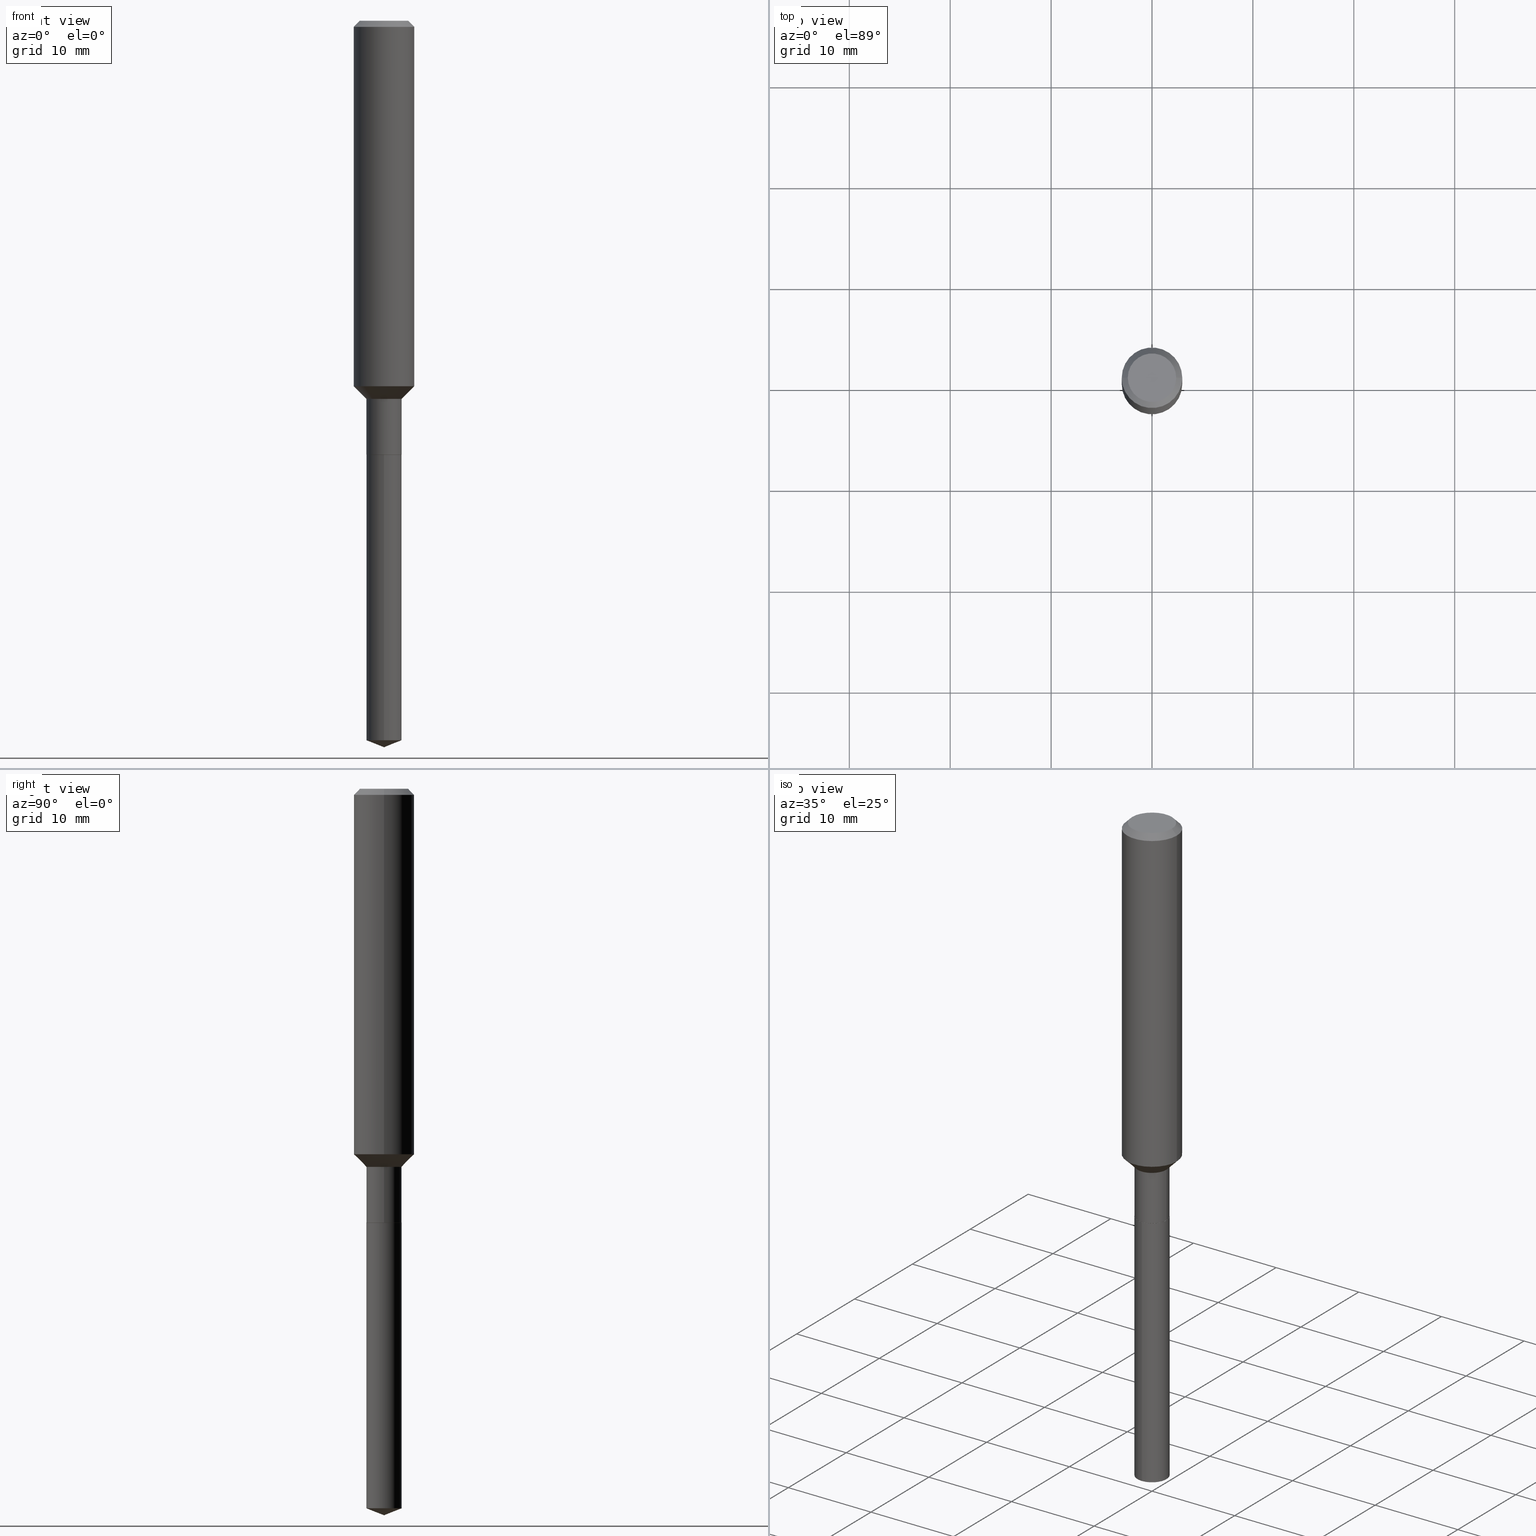
[diagram: canonical four-view strip — front | top / right | iso, engineering-drawing reading convention]
A machine part, canonical four-view strip (front | top / right | iso — engineering-drawing reading convention). The complete STEP part file that produces these views, byte-faithful:
ISO-10303-21;
HEADER;
FILE_DESCRIPTION (( 'STEP AP203' ),
    '1' );
FILE_NAME ('66611.STEP',
    '2024-04-25T01:59:13',
    ( '' ),
    ( '' ),
    'SwSTEP 2.0',
    'SolidWorks 2023',
    '' );
FILE_SCHEMA (( 'CONFIG_CONTROL_DESIGN' ));
ENDSEC;

DATA;
#1 = EDGE_CURVE ( 'NONE', #399, #486, #226, .T. ) ;
#2 = CIRCLE ( 'NONE', #484, 0.1180999999999999966 ) ;
#3 = DIRECTION ( 'NONE',  ( -2.445468806185136597E-29, 3.491481338843145583E-15, 1.000000000000000000 ) ) ;
#4 =( CONVERSION_BASED_UNIT ( 'INCH', #457 ) LENGTH_UNIT ( ) NAMED_UNIT ( #292 ) );
#5 = DIRECTION ( 'NONE',  ( -2.445468806185136597E-29, 3.491481338843145583E-15, 1.000000000000000000 ) ) ;
#6 = ADVANCED_FACE ( 'NONE', ( #42 ), #288, .T. ) ;
#7 = FACE_OUTER_BOUND ( 'NONE', #283, .T. ) ;
#8 = CIRCLE ( 'NONE', #291, 0.09447999999999998066 ) ;
#9 = CONICAL_SURFACE ( 'NONE', #458, 0.06840000000000000246, 0.7853981633975591903 ) ;
#10 = CALENDAR_DATE ( 2024, 24, 4 ) ;
#11 = CARTESIAN_POINT ( 'NONE',  ( 3.487483064500622693E-29, -4.979201537324209694E-15, -1.426099999999999923 ) ) ;
#12 = PERSON_AND_ORGANIZATION ( #142, #322 ) ;
#13 = CARTESIAN_POINT ( 'NONE',  ( 0.000000000000000000, 0.000000000000000000, 0.000000000000000000 ) ) ;
#14 = APPROVAL_STATUS ( 'not_yet_approved' ) ;
#15 = DIRECTION ( 'NONE',  ( 1.000000000000000000, -6.982962677686265922E-15, 4.876176775795935793E-29 ) ) ;
#16 = VECTOR ( 'NONE', #270, 39.37007874015748143 ) ;
#17 = LINE ( 'NONE', #423, #225 ) ;
#18 = CARTESIAN_POINT ( 'NONE',  ( 4.139934141990817236E-29, -5.910728758527560286E-15, -1.692899999999999849 ) ) ;
#19 = EDGE_LOOP ( 'NONE', ( #294, #215, #365, #74 ) ) ;
#20 = EDGE_CURVE ( 'NONE', #486, #430, #90, .T. ) ;
#21 = CC_DESIGN_PERSON_AND_ORGANIZATION_ASSIGNMENT ( #86, #230, ( #128 ) ) ;
#22 = DIRECTION ( 'NONE',  ( -2.440414050576406318E-29, 3.498720036573669606E-15, 1.000000000000000000 ) ) ;
#23 = ORIENTED_EDGE ( 'NONE', *, *, #422, .F. ) ;
#24 = VECTOR ( 'NONE', #487, 39.37007874015748143 ) ;
#25 = AXIS2_PLACEMENT_3D ( 'NONE', #481, #485, #134 ) ;
#26 = CARTESIAN_POINT ( 'NONE',  ( 0.000000000000000000, 0.000000000000000000, 0.000000000000000000 ) ) ;
#27 = ORIENTED_EDGE ( 'NONE', *, *, #152, .F. ) ;
#28 = CYLINDRICAL_SURFACE ( 'NONE', #315, 0.06890000000000000291 ) ;
#29 = VERTEX_POINT ( 'NONE', #490 ) ;
#30 = APPROVAL ( #308, 'UNSPECIFIED' ) ;
#31 = DIRECTION ( 'NONE',  ( -2.445468806185136597E-29, 3.491481338843145583E-15, 1.000000000000000000 ) ) ;
#32 = ORIENTED_EDGE ( 'NONE', *, *, #269, .F. ) ;
#33 = CONICAL_SURFACE ( 'NONE', #355, 99.94676754583977640, 1.195550537616118847 ) ;
#34 = APPLICATION_PROTOCOL_DEFINITION ( 'international standard', 'config_control_design', 1994, #397 ) ;
#35 = EDGE_LOOP ( 'NONE', ( #133, #286, #433, #483 ) ) ;
#36 = DIRECTION ( 'NONE',  ( 1.000000000000000000, -6.982962677686268288E-15, 0.000000000000000000 ) ) ;
#37 = EDGE_CURVE ( 'NONE', #478, #163, #320, .T. ) ;
#38 = CARTESIAN_POINT ( 'NONE',  ( 0.1181000000000001632, -5.803889429558959534E-15, -1.426099999999999923 ) ) ;
#39 = DIRECTION ( 'NONE',  ( 2.445468806185136597E-29, -3.491481338843145583E-15, -1.000000000000000000 ) ) ;
#40 = DIRECTION ( 'NONE',  ( 1.000000000000000000, -6.982962677686268288E-15, 0.000000000000000000 ) ) ;
#41 = AXIS2_PLACEMENT_3D ( 'NONE', #432, #436, #474 ) ;
#42 = FACE_OUTER_BOUND ( 'NONE', #19, .T. ) ;
#43 = CARTESIAN_POINT ( 'NONE',  ( 4.138711407587725556E-29, -5.908983017858139571E-15, -1.692399999999999904 ) ) ;
#44 = CARTESIAN_POINT ( 'NONE',  ( 0.1180999999999999966, -8.926936027602933910E-16, -0.02362000000000014435 ) ) ;
#45 = DIRECTION ( 'NONE',  ( 2.445468806185136597E-29, -3.491481338843145583E-15, -1.000000000000000000 ) ) ;
#46 = SECURITY_CLASSIFICATION_LEVEL ( 'unclassified' ) ;
#47 = DIRECTION ( 'NONE',  ( 1.000000000000000000, -6.982962677686266711E-15, 4.876176775795936353E-29 ) ) ;
#48 = EDGE_CURVE ( 'NONE', #367, #430, #455, .T. ) ;
#49 = DATE_AND_TIME ( #352, #361 ) ;
#50 = APPROVAL ( #14, 'UNSPECIFIED' ) ;
#51 = CYLINDRICAL_SURFACE ( 'NONE', #239, 0.1181000000000000799 ) ;
#52 = LINE ( 'NONE', #271, #216 ) ;
#53 = EDGE_LOOP ( 'NONE', ( #60, #425, #317, #76 ) ) ;
#54 = AXIS2_PLACEMENT_3D ( 'NONE', #165, #73, #146 ) ;
#55 = EDGE_CURVE ( 'NONE', #399, #367, #330, .T. ) ;
#56 = DIRECTION ( 'NONE',  ( -2.440414050576406318E-29, 3.498720036573669606E-15, 1.000000000000000000 ) ) ;
#57 = FACE_OUTER_BOUND ( 'NONE', #53, .T. ) ;
#58 = EDGE_LOOP ( 'NONE', ( #94, #98, #265, #354 ) ) ;
#59 = DIRECTION ( 'NONE',  ( -2.445468806185136597E-29, 3.491481338843145583E-15, 1.000000000000000000 ) ) ;
#60 = ORIENTED_EDGE ( 'NONE', *, *, #243, .T. ) ;
#61 = AXIS2_PLACEMENT_3D ( 'NONE', #267, #3, #77 ) ;
#62 = EDGE_CURVE ( 'NONE', #441, #409, #417, .T. ) ;
#63 = CC_DESIGN_APPROVAL ( #30, ( #469 ) ) ;
#64 = CARTESIAN_POINT ( 'NONE',  ( 5.776197320209328408E-31, -8.246878922347560526E-17, -0.02362000000000014435 ) ) ;
#65 = VERTEX_POINT ( 'NONE', #411 ) ;
#66 = PLANE ( 'NONE',  #466 ) ;
#67 = ORIENTED_EDGE ( 'NONE', *, *, #48, .T. ) ;
#68 = EDGE_LOOP ( 'NONE', ( #168, #396, #96, #120 ) ) ;
#69 = CONICAL_SURFACE ( 'NONE', #346, 0.1180999999999999966, 0.7853981633974459475 ) ;
#70 = CARTESIAN_POINT ( 'NONE',  ( -4.811261284925152062E-16, -0.06890000000000982838, -2.807459568230130653 ) ) ;
#71 = EDGE_CURVE ( 'NONE', #65, #161, #438, .T. ) ;
#72 = CARTESIAN_POINT ( 'NONE',  ( 4.895639449387776796E-16, 0.06889999999999020519, -2.807459568230130653 ) ) ;
#73 = DIRECTION ( 'NONE',  ( -2.440414050576406318E-29, 3.498720036573669606E-15, 1.000000000000000000 ) ) ;
#74 = ORIENTED_EDGE ( 'NONE', *, *, #48, .F. ) ;
#75 = EDGE_CURVE ( 'NONE', #404, #29, #442, .T. ) ;
#76 = ORIENTED_EDGE ( 'NONE', *, *, #101, .F. ) ;
#77 = DIRECTION ( 'NONE',  ( 1.000000000000000000, -6.982962677686267499E-15, 4.875432709231658792E-29 ) ) ;
#78 = CIRCLE ( 'NONE', #197, 0.1181000000000001632 ) ;
#79 = DATE_TIME_ROLE ( 'classification_date' ) ;
#80 = CARTESIAN_POINT ( 'NONE',  ( 5.776197320209328408E-31, -8.246878922347560526E-17, -0.02362000000000014435 ) ) ;
#81 = CARTESIAN_POINT ( 'NONE',  ( 6.917597667763880730E-29, -9.917471815671723220E-15, -2.834600000000000009 ) ) ;
#82 = PERSON_AND_ORGANIZATION_ROLE ( 'design_supplier' ) ;
#83 = FACE_OUTER_BOUND ( 'NONE', #445, .T. ) ;
#84 = AXIS2_PLACEMENT_3D ( 'NONE', #224, #214, #368 ) ;
#85 = EDGE_CURVE ( 'NONE', #441, #29, #296, .T. ) ;
#86 = PERSON_AND_ORGANIZATION ( #142, #322 ) ;
#87 = DIRECTION ( 'NONE',  ( -6.982962677686265922E-15, -1.000000000000000000, 3.498627837350010928E-15 ) ) ;
#88 = ORIENTED_EDGE ( 'NONE', *, *, #170, .T. ) ;
#89 = EDGE_CURVE ( 'NONE', #473, #223, #449, .T. ) ;
#90 = CIRCLE ( 'NONE', #278, 0.1180999999999999966 ) ;
#91 = PRODUCT_DEFINITION_FORMATION_WITH_SPECIFIED_SOURCE ( 'ANY', '', #459, .NOT_KNOWN. ) ;
#92 = CARTESIAN_POINT ( 'NONE',  ( -0.09447999999999998066, 7.009847083995354710E-16, -1.928573779297727792E-17 ) ) ;
#93 = LINE ( 'NONE', #408, #259 ) ;
#94 = ORIENTED_EDGE ( 'NONE', *, *, #262, .T. ) ;
#95 = FACE_OUTER_BOUND ( 'NONE', #126, .T. ) ;
#96 = ORIENTED_EDGE ( 'NONE', *, *, #297, .T. ) ;
#97 = DIRECTION ( 'NONE',  ( -6.982962677686265922E-15, -1.000000000000000000, 3.964946289788480896E-15 ) ) ;
#98 = ORIENTED_EDGE ( 'NONE', *, *, #140, .T. ) ;
#99 = FACE_OUTER_BOUND ( 'NONE', #58, .T. ) ;
#100 = EDGE_LOOP ( 'NONE', ( #242, #435, #456, #387 ) ) ;
#101 = EDGE_CURVE ( 'NONE', #161, #409, #229, .T. ) ;
#102 = LOCAL_TIME ( 21, 59, 13.00000000000000000, #350 ) ;
#103 = DIRECTION ( 'NONE',  ( -6.982962677686265922E-15, -1.000000000000000000, 0.000000000000000000 ) ) ;
#104 = CARTESIAN_POINT ( 'NONE',  ( 0.06889999999999997515, -5.632108547687876483E-15, -1.475300000000000056 ) ) ;
#105 = EDGE_CURVE ( 'NONE', #401, #200, #258, .T. ) ;
#106 = CARTESIAN_POINT ( 'NONE',  ( 4.139934141990817236E-29, -5.910728758527560286E-15, -1.692899999999999849 ) ) ;
#107 = CC_DESIGN_DATE_AND_TIME_ASSIGNMENT ( #388, #116, ( #469 ) ) ;
#108 = EDGE_LOOP ( 'NONE', ( #171, #465 ) ) ;
#109 = CARTESIAN_POINT ( 'NONE',  ( 4.139934141990817236E-29, -5.910728758527560286E-15, -1.692899999999999849 ) ) ;
#110 = AXIS2_PLACEMENT_3D ( 'NONE', #219, #147, #36 ) ;
#111 = AXIS2_PLACEMENT_3D ( 'NONE', #106, #174, #263 ) ;
#112 = DIRECTION ( 'NONE',  ( 1.000000000000000000, -6.982962677686270655E-15, 0.000000000000000000 ) ) ;
#113 = PERSON_AND_ORGANIZATION ( #142, #322 ) ;
#114 = APPROVAL_DATE_TIME ( #380, #429 ) ;
#115 = UNCERTAINTY_MEASURE_WITH_UNIT (LENGTH_MEASURE( 1.000000000000000082E-05 ), #4, 'distance_accuracy_value', 'NONE');
#116 = DATE_TIME_ROLE ( 'creation_date' ) ;
#117 = DIRECTION ( 'NONE',  ( 0.7071067811865480168, -2.468850131082262583E-15, 0.7071067811865469066 ) ) ;
#118 = PRODUCT_DEFINITION_SHAPE ( 'NONE', 'NONE',  #469 ) ;
#119 = CARTESIAN_POINT ( 'NONE',  ( -4.811261284925424219E-16, -0.06890000000000591485, -1.692899999999999627 ) ) ;
#120 = ORIENTED_EDGE ( 'NONE', *, *, #234, .F. ) ;
#121 = ADVANCED_FACE ( 'NONE', ( #264 ), #51, .T. ) ;
#122 = APPROVAL_STATUS ( 'not_yet_approved' ) ;
#123 = PLANE ( 'NONE',  #402 ) ;
#124 = EDGE_LOOP ( 'NONE', ( #480, #289, #313, #331 ) ) ;
#125 = CARTESIAN_POINT ( 'NONE',  ( 2.358133508849003952E-46, -3.366789680499277518E-32, -9.642868896486260050E-18 ) ) ;
#126 = EDGE_LOOP ( 'NONE', ( #195, #208 ) ) ;
#127 = VECTOR ( 'NONE', #117, 39.37007874015748854 ) ;
#128 = SECURITY_CLASSIFICATION ( '', '', #46 ) ;
#129 = DIRECTION ( 'NONE',  ( -2.445468806185136597E-29, 3.491481338843145583E-15, 1.000000000000000000 ) ) ;
#130 = ORIENTED_EDGE ( 'NONE', *, *, #269, .T. ) ;
#131 = EDGE_CURVE ( 'NONE', #175, #401, #52, .T. ) ;
#132 = DIRECTION ( 'NONE',  ( 1.000000000000000000, -6.982962677686266711E-15, 0.000000000000000000 ) ) ;
#133 = ORIENTED_EDGE ( 'NONE', *, *, #482, .T. ) ;
#134 = DIRECTION ( 'NONE',  ( 1.000000000000000000, -6.982962677686273810E-15, 0.000000000000000000 ) ) ;
#135 = ORIENTED_EDGE ( 'NONE', *, *, #37, .T. ) ;
#136 = CLOSED_SHELL ( 'NONE', ( #443, #384, #158, #476, #357 ) ) ;
#137 = CIRCLE ( 'NONE', #207, 0.06890000000000000291 ) ;
#138 = DIRECTION ( 'NONE',  ( 2.438088387897960049E-29, -3.491481338843145188E-15, -1.000000000000000000 ) ) ;
#139 = EDGE_LOOP ( 'NONE', ( #406, #130, #248, #305 ) ) ;
#140 = EDGE_CURVE ( 'NONE', #478, #65, #17, .T. ) ;
#141 = CARTESIAN_POINT ( 'NONE',  ( 0.1180999999999999966, -9.071566814582237199E-16, -0.02362000000000014435 ) ) ;
#142 = PERSON ( 'UNSPECIFIED', 'UNSPECIFIED', 'UNSPECIFIED', ('UNSPECIFIED'), ('UNSPECIFIED'), ('UNSPECIFIED') ) ;
#143 = DIRECTION ( 'NONE',  ( -6.982962677686265922E-15, -1.000000000000000000, 3.964946289788480107E-15 ) ) ;
#144 = DIRECTION ( 'NONE',  ( 1.000000000000000000, -6.982962677686265922E-15, 0.000000000000000000 ) ) ;
#145 = APPROVAL_PERSON_ORGANIZATION ( #235, #30, #191 ) ;
#146 = DIRECTION ( 'NONE',  ( -6.982962677686265922E-15, -1.000000000000000000, 3.498627837350010928E-15 ) ) ;
#147 = DIRECTION ( 'NONE',  ( -2.445468806185136597E-29, 3.491481338843145583E-15, 1.000000000000000000 ) ) ;
#148 = MECHANICAL_CONTEXT ( 'NONE', #397, 'mechanical' ) ;
#149 = CARTESIAN_POINT ( 'NONE',  ( 3.487483064500622693E-29, -4.979201537324209694E-15, -1.426099999999999923 ) ) ;
#150 = AXIS2_PLACEMENT_3D ( 'NONE', #80, #39, #453 ) ;
#151 = CC_DESIGN_APPROVAL ( #429, ( #91 ) ) ;
#152 = EDGE_CURVE ( 'NONE', #367, #399, #8, .T. ) ;
#153 = CALENDAR_DATE ( 2024, 24, 4 ) ;
#154 = DATE_AND_TIME ( #232, #276 ) ;
#155 = DIRECTION ( 'NONE',  ( 1.000000000000000000, -6.982962677686270655E-15, 0.000000000000000000 ) ) ;
#156 = PERSON_AND_ORGANIZATION ( #142, #322 ) ;
#157 = VECTOR ( 'NONE', #488, 39.37007874015748143 ) ;
#158 = ADVANCED_FACE ( 'NONE', ( #83 ), #33, .T. ) ;
#159 = DIRECTION ( 'NONE',  ( -6.497071151882118258E-15, -0.9304175679820243516, 0.3665012267242976907 ) ) ;
#160 = DIRECTION ( 'NONE',  ( -6.982962677686265922E-15, -1.000000000000000000, 0.000000000000000000 ) ) ;
#161 = VERTEX_POINT ( 'NONE', #236 ) ;
#162 = DIRECTION ( 'NONE',  ( 1.000000000000000000, -6.982962677686265922E-15, 0.000000000000000000 ) ) ;
#163 = VERTEX_POINT ( 'NONE', #198 ) ;
#164 = VECTOR ( 'NONE', #413, 39.37007874015748143 ) ;
#165 = CARTESIAN_POINT ( 'NONE',  ( -8.915313846624587050E-28, 1.278396659053883251E-13, 36.53547874015747965 ) ) ;
#166 = ORIENTED_EDGE ( 'NONE', *, *, #105, .T. ) ;
#167 = DIRECTION ( 'NONE',  ( -2.445468806185136877E-29, 3.491481338843145188E-15, 1.000000000000000000 ) ) ;
#168 = ORIENTED_EDGE ( 'NONE', *, *, #311, .F. ) ;
#169 = CARTESIAN_POINT ( 'NONE',  ( 0.000000000000000000, 0.000000000000000000, 0.000000000000000000 ) ) ;
#170 = EDGE_CURVE ( 'NONE', #175, #473, #351, .T. ) ;
#171 = ORIENTED_EDGE ( 'NONE', *, *, #152, .T. ) ;
#172 = VECTOR ( 'NONE', #178, 39.37007874015748143 ) ;
#173 = CIRCLE ( 'NONE', #241, 0.06889999999999997515 ) ;
#174 = DIRECTION ( 'NONE',  ( -2.440414050576406318E-29, 3.498720036573669606E-15, 1.000000000000000000 ) ) ;
#175 = VERTEX_POINT ( 'NONE', #316 ) ;
#176 = DIRECTION ( 'NONE',  ( -2.445468806185136597E-29, 3.491481338843145583E-15, 1.000000000000000000 ) ) ;
#177 = CARTESIAN_POINT ( 'NONE',  ( -0.06889999999999997515, -5.040418773588007011E-15, -1.475300000000000056 ) ) ;
#178 = DIRECTION ( 'NONE',  ( -2.440414050576406038E-29, 3.498720036573669211E-15, 1.000000000000000000 ) ) ;
#179 = CIRCLE ( 'NONE', #306, 0.06890000000000001679 ) ;
#180 = ADVANCED_FACE ( 'NONE', ( #468 ), #123, .F. ) ;
#181 =( LENGTH_UNIT ( ) NAMED_UNIT ( * ) SI_UNIT ( $, .METRE. ) );
#182 = DIRECTION ( 'NONE',  ( 1.000000000000000000, -6.982962677686266711E-15, 0.000000000000000000 ) ) ;
#183 = DIRECTION ( 'NONE',  ( -2.445468806185136597E-29, 3.491481338843145583E-15, 1.000000000000000000 ) ) ;
#184 = DIRECTION ( 'NONE',  ( -0.7071067811865480168, 7.493145998870355738E-15, 0.7071067811865469066 ) ) ;
#185 = PERSON_AND_ORGANIZATION ( #142, #322 ) ;
#186 = CARTESIAN_POINT ( 'NONE',  ( 0.06890000000000000291, -4.811261284925837385E-16, 3.359685798523399268E-30 ) ) ;
#187 = PRODUCT_RELATED_PRODUCT_CATEGORY ( 'detail', '', ( #459 ) ) ;
#188 = CIRCLE ( 'NONE', #41, 0.06840000000000000246 ) ;
#189 = CC_DESIGN_SECURITY_CLASSIFICATION ( #128, ( #91 ) ) ;
#190 = DIRECTION ( 'NONE',  ( -1.000000000000000000, 6.982962677686266711E-15, 0.000000000000000000 ) ) ;
#191 = APPROVAL_ROLE ( '' ) ;
#192 = DIRECTION ( 'NONE',  ( -2.445468806185136597E-29, 3.491481338843145583E-15, 1.000000000000000000 ) ) ;
#193 = ADVANCED_FACE ( 'NONE', ( #7 ), #69, .T. ) ;
#194 = DIRECTION ( 'NONE',  ( -2.445468806185136597E-29, 3.491481338843145583E-15, 1.000000000000000000 ) ) ;
#195 = ORIENTED_EDGE ( 'NONE', *, *, #422, .T. ) ;
#196 = CC_DESIGN_PERSON_AND_ORGANIZATION_ASSIGNMENT ( #12, #461, ( #469 ) ) ;
#197 = AXIS2_PLACEMENT_3D ( 'NONE', #11, #192, #155 ) ;
#198 = CARTESIAN_POINT ( 'NONE',  ( 0.06840000000000000246, -6.388363405681301806E-15, -1.692899999999999849 ) ) ;
#199 = CONICAL_SURFACE ( 'NONE', #217, 0.06889999999999997515, 0.7853981633974490562 ) ;
#200 = VERTEX_POINT ( 'NONE', #390 ) ;
#201 = FACE_OUTER_BOUND ( 'NONE', #108, .T. ) ;
#202 = ORIENTED_EDGE ( 'NONE', *, *, #89, .F. ) ;
#203 = DIRECTION ( 'NONE',  ( 1.000000000000000000, -6.982962677686265922E-15, 4.876176775795934672E-29 ) ) ;
#204 = EDGE_LOOP ( 'NONE', ( #360, #419, #256, #470 ) ) ;
#205 = EDGE_CURVE ( 'NONE', #29, #404, #78, .T. ) ;
#206 = CARTESIAN_POINT ( 'NONE',  ( -0.1181000000000000799, 8.391509709326788873E-16, -5.809262341591047988E-30 ) ) ;
#207 = AXIS2_PLACEMENT_3D ( 'NONE', #249, #22, #97 ) ;
#208 = ORIENTED_EDGE ( 'NONE', *, *, #228, .T. ) ;
#209 = CIRCLE ( 'NONE', #394, 0.06890000000000001679 ) ;
#210 = CARTESIAN_POINT ( 'NONE',  ( 6.859920972504001083E-29, -9.810260651849216245E-15, -2.807459568230130653 ) ) ;
#211 = ORIENTED_EDGE ( 'NONE', *, *, #140, .F. ) ;
#212 = DIRECTION ( 'NONE',  ( -2.440414050576406318E-29, 3.498720036573669606E-15, 1.000000000000000000 ) ) ;
#213 = ORIENTED_EDGE ( 'NONE', *, *, #131, .T. ) ;
#214 = DIRECTION ( 'NONE',  ( 0.000000000000000000, 0.000000000000000000, 1.000000000000000000 ) ) ;
#215 = ORIENTED_EDGE ( 'NONE', *, *, #1, .T. ) ;
#216 = VECTOR ( 'NONE', #273, 39.37007874015748854 ) ;
#217 = AXIS2_PLACEMENT_3D ( 'NONE', #364, #31, #366 ) ;
#218 = CYLINDRICAL_SURFACE ( 'NONE', #450, 0.06890000000000001679 ) ;
#219 = CARTESIAN_POINT ( 'NONE',  ( 3.607800129764931825E-29, -5.150982419195292745E-15, -1.475300000000000056 ) ) ;
#220 = EDGE_CURVE ( 'NONE', #409, #404, #312, .T. ) ;
#221 = DIRECTION ( 'NONE',  ( -2.440414050576406318E-29, 3.498720036573669606E-15, 1.000000000000000000 ) ) ;
#222 = VECTOR ( 'NONE', #301, 39.37007874015748143 ) ;
#223 = VERTEX_POINT ( 'NONE', #119 ) ;
#224 = CARTESIAN_POINT ( 'NONE',  ( 0.000000000000000000, 0.000000000000000000, 0.000000000000000000 ) ) ;
#225 = VECTOR ( 'NONE', #472, 39.37007874015748143 ) ;
#226 = LINE ( 'NONE', #44, #222 ) ;
#227 = APPROVAL_DATE_TIME ( #49, #50 ) ;
#228 = EDGE_CURVE ( 'NONE', #200, #223, #137, .T. ) ;
#229 = LINE ( 'NONE', #186, #157 ) ;
#230 = PERSON_AND_ORGANIZATION_ROLE ( 'classification_officer' ) ;
#231 = DIRECTION ( 'NONE',  ( -2.438088387897960049E-29, 3.491481338843145188E-15, 1.000000000000000000 ) ) ;
#232 = CALENDAR_DATE ( 2024, 24, 4 ) ;
#233 = AXIS2_PLACEMENT_3D ( 'NONE', #362, #398, #253 ) ;
#234 = EDGE_CURVE ( 'NONE', #430, #486, #2, .T. ) ;
#235 = PERSON_AND_ORGANIZATION ( #142, #322 ) ;
#236 = CARTESIAN_POINT ( 'NONE',  ( 0.06890000000000000291, -6.390109146350723310E-15, -1.692399999999999904 ) ) ;
#237 = ORIENTED_EDGE ( 'NONE', *, *, #71, .F. ) ;
#238 = APPLICATION_PROTOCOL_DEFINITION ( 'international standard', 'config_control_design', 1994, #420 ) ;
#239 = AXIS2_PLACEMENT_3D ( 'NONE', #13, #194, #47 ) ;
#240 = CARTESIAN_POINT ( 'NONE',  ( 4.716267017698007905E-46, -6.733579360998555036E-32, -1.928573779297252010E-17 ) ) ;
#241 = AXIS2_PLACEMENT_3D ( 'NONE', #257, #377, #40 ) ;
#242 = ORIENTED_EDGE ( 'NONE', *, *, #75, .T. ) ;
#243 = EDGE_CURVE ( 'NONE', #161, #65, #268, .T. ) ;
#244 = LINE ( 'NONE', #206, #314 ) ;
#245 = ORIENTED_EDGE ( 'NONE', *, *, #131, .F. ) ;
#246 = ADVANCED_BREP_SHAPE_REPRESENTATION ( '66611', ( #385, #389, #84 ), #439 ) ;
#247 = FACE_OUTER_BOUND ( 'NONE', #334, .T. ) ;
#248 = ORIENTED_EDGE ( 'NONE', *, *, #89, .T. ) ;
#249 = CARTESIAN_POINT ( 'NONE',  ( 4.139934141990817236E-29, -5.910728758527560286E-15, -1.692899999999999849 ) ) ;
#250 = VECTOR ( 'NONE', #403, 39.37007874015748143 ) ;
#251 = ORIENTED_EDGE ( 'NONE', *, *, #452, .F. ) ;
#252 = CC_DESIGN_PERSON_AND_ORGANIZATION_ASSIGNMENT ( #113, #82, ( #91 ) ) ;
#253 = DIRECTION ( 'NONE',  ( 1.000000000000000000, -6.982962677686266711E-15, 4.876176775795936353E-29 ) ) ;
#254 = ORIENTED_EDGE ( 'NONE', *, *, #262, .F. ) ;
#255 = CARTESIAN_POINT ( 'NONE',  ( 4.138711407587725556E-29, -5.908983017858139571E-15, -1.692399999999999904 ) ) ;
#256 = ORIENTED_EDGE ( 'NONE', *, *, #101, .T. ) ;
#257 = CARTESIAN_POINT ( 'NONE',  ( 3.607800129764931825E-29, -5.150982419195292745E-15, -1.475300000000000056 ) ) ;
#258 = LINE ( 'NONE', #375, #172 ) ;
#259 = VECTOR ( 'NONE', #284, 39.37007874015748143 ) ;
#260 = AXIS2_PLACEMENT_3D ( 'NONE', #477, #282, #434 ) ;
#261 = CYLINDRICAL_SURFACE ( 'NONE', #378, 0.06890000000000001679 ) ;
#262 = EDGE_CURVE ( 'NONE', #163, #478, #188, .T. ) ;
#263 = DIRECTION ( 'NONE',  ( -6.982962677686265922E-15, -1.000000000000000000, 3.964946289788480896E-15 ) ) ;
#264 = FACE_OUTER_BOUND ( 'NONE', #100, .T. ) ;
#265 = ORIENTED_EDGE ( 'NONE', *, *, #243, .F. ) ;
#266 = CARTESIAN_POINT ( 'NONE',  ( -0.1180999999999999966, -1.691684192341163195E-15, -0.02362000000000014435 ) ) ;
#267 = CARTESIAN_POINT ( 'NONE',  ( 4.716267017698007905E-46, -6.733579360998555036E-32, -1.928573779297252010E-17 ) ) ;
#268 = CIRCLE ( 'NONE', #338, 0.06890000000000000291 ) ;
#269 = EDGE_CURVE ( 'NONE', #401, #473, #179, .T. ) ;
#270 = DIRECTION ( 'NONE',  ( -2.440414050576406038E-29, 3.498720036573669211E-15, 1.000000000000000000 ) ) ;
#271 = CARTESIAN_POINT ( 'NONE',  ( 6.934862132315807139E-29, -9.892963032895715087E-15, -2.834600000000000009 ) ) ;
#272 = PERSON_AND_ORGANIZATION_ROLE ( 'design_owner' ) ;
#273 = DIRECTION ( 'NONE',  ( 6.611014441532064222E-15, 0.9304175679820269051, 0.3665012267242910848 ) ) ;
#274 = CLOSED_SHELL ( 'NONE', ( #335, #6, #121, #318, #370, #324, #376, #349, #193, #285, #180, #391 ) ) ;
#275 = PERSON_AND_ORGANIZATION ( #142, #322 ) ;
#276 = LOCAL_TIME ( 21, 59, 13.00000000000000000, #348 ) ;
#277 = EDGE_CURVE ( 'NONE', #163, #161, #93, .T. ) ;
#278 = AXIS2_PLACEMENT_3D ( 'NONE', #379, #374, #182 ) ;
#279 = DIRECTION ( 'NONE',  ( 6.982962677686265922E-15, 1.000000000000000000, -3.498720036573669211E-15 ) ) ;
#280 = CONICAL_SURFACE ( 'NONE', #25, 0.06840000000000000246, 0.7853981633975591903 ) ;
#281 = ORIENTED_EDGE ( 'NONE', *, *, #37, .F. ) ;
#282 = DIRECTION ( 'NONE',  ( -2.445468806185136597E-29, 3.491481338843145583E-15, 1.000000000000000000 ) ) ;
#283 = EDGE_LOOP ( 'NONE', ( #437, #27, #67, #392 ) ) ;
#284 = DIRECTION ( 'NONE',  ( 0.7071067811866259545, -2.468850131083078659E-15, 0.7071067811864690800 ) ) ;
#285 = ADVANCED_FACE ( 'NONE', ( #201 ), #66, .F. ) ;
#286 = ORIENTED_EDGE ( 'NONE', *, *, #85, .T. ) ;
#287 = PLANE ( 'NONE',  #290 ) ;
#288 = CONICAL_SURFACE ( 'NONE', #150, 0.1180999999999999966, 0.7853981633974459475 ) ;
#289 = ORIENTED_EDGE ( 'NONE', *, *, #62, .T. ) ;
#290 = AXIS2_PLACEMENT_3D ( 'NONE', #18, #400, #279 ) ;
#291 = AXIS2_PLACEMENT_3D ( 'NONE', #240, #353, #395 ) ;
#292 = DIMENSIONAL_EXPONENTS ( 1.000000000000000000, 0.000000000000000000, 0.000000000000000000, 0.000000000000000000, 0.000000000000000000, 0.000000000000000000, 0.000000000000000000 ) ;
#293 = CARTESIAN_POINT ( 'NONE',  ( 0.1181000000000000799, -8.246878922347486570E-16, 5.758764772215004644E-30 ) ) ;
#294 = ORIENTED_EDGE ( 'NONE', *, *, #55, .F. ) ;
#295 = DIRECTION ( 'NONE',  ( -2.440414050576406318E-29, 3.498720036573669606E-15, 1.000000000000000000 ) ) ;
#296 = LINE ( 'NONE', #298, #431 ) ;
#297 = EDGE_CURVE ( 'NONE', #404, #486, #405, .T. ) ;
#298 = CARTESIAN_POINT ( 'NONE',  ( -0.06889999999999997515, -4.661418474256584781E-15, -1.475300000000000056 ) ) ;
#299 = APPROVAL_PERSON_ORGANIZATION ( #185, #50, #382 ) ;
#300 = CARTESIAN_POINT ( 'NONE',  ( 4.139934141990817236E-29, -5.910728758527560286E-15, -1.692899999999999849 ) ) ;
#301 = DIRECTION ( 'NONE',  ( 0.7071067811865459074, -7.319954787623251312E-15, -0.7071067811865492381 ) ) ;
#302 = FACE_OUTER_BOUND ( 'NONE', #447, .T. ) ;
#303 = CC_DESIGN_DATE_AND_TIME_ASSIGNMENT ( #154, #79, ( #128 ) ) ;
#304 =( NAMED_UNIT ( * ) PLANE_ANGLE_UNIT ( ) SI_UNIT ( $, .RADIAN. ) );
#305 = ORIENTED_EDGE ( 'NONE', *, *, #228, .F. ) ;
#306 = AXIS2_PLACEMENT_3D ( 'NONE', #210, #212, #160 ) ;
#307 = LOCAL_TIME ( 21, 59, 13.00000000000000000, #310 ) ;
#308 = APPROVAL_STATUS ( 'not_yet_approved' ) ;
#309 = DATE_AND_TIME ( #153, #307 ) ;
#310 = COORDINATED_UNIVERSAL_TIME_OFFSET ( 5, 0, .BEHIND. ) ;
#311 = EDGE_CURVE ( 'NONE', #29, #430, #244, .T. ) ;
#312 = LINE ( 'NONE', #464, #127 ) ;
#313 = ORIENTED_EDGE ( 'NONE', *, *, #220, .T. ) ;
#314 = VECTOR ( 'NONE', #167, 39.37007874015748143 ) ;
#315 = AXIS2_PLACEMENT_3D ( 'NONE', #169, #319, #327 ) ;
#316 = CARTESIAN_POINT ( 'NONE',  ( 6.917597667763880730E-29, -9.917471815671723220E-15, -2.834600000000000009 ) ) ;
#317 = ORIENTED_EDGE ( 'NONE', *, *, #482, .F. ) ;
#318 = ADVANCED_FACE ( 'NONE', ( #479 ), #199, .T. ) ;
#319 = DIRECTION ( 'NONE',  ( -2.445468806185136597E-29, 3.491481338843145583E-15, 1.000000000000000000 ) ) ;
#320 = CIRCLE ( 'NONE', #369, 0.06840000000000000246 ) ;
#321 = FACE_OUTER_BOUND ( 'NONE', #124, .T. ) ;
#322 = ORGANIZATION ( 'UNSPECIFIED', 'UNSPECIFIED', '' ) ;
#323 = ORIENTED_EDGE ( 'NONE', *, *, #277, .T. ) ;
#324 = ADVANCED_FACE ( 'NONE', ( #329 ), #28, .T. ) ;
#325 = CYLINDRICAL_SURFACE ( 'NONE', #426, 0.06890000000000000291 ) ;
#326 = EDGE_LOOP ( 'NONE', ( #254, #281 ) ) ;
#327 = DIRECTION ( 'NONE',  ( 1.000000000000000000, -6.982962677686265922E-15, 4.876176775795934672E-29 ) ) ;
#328 = ORIENTED_EDGE ( 'NONE', *, *, #452, .T. ) ;
#329 = FACE_OUTER_BOUND ( 'NONE', #204, .T. ) ;
#330 = CIRCLE ( 'NONE', #61, 0.09447999999999998066 ) ;
#331 = ORIENTED_EDGE ( 'NONE', *, *, #205, .F. ) ;
#332 = CIRCLE ( 'NONE', #111, 0.06890000000000000291 ) ;
#333 = CARTESIAN_POINT ( 'NONE',  ( 6.859920972504001083E-29, -9.810260651849216245E-15, -2.807459568230130653 ) ) ;
#334 = EDGE_LOOP ( 'NONE', ( #371, #213, #251 ) ) ;
#335 = ADVANCED_FACE ( 'NONE', ( #99 ), #280, .T. ) ;
#336 = DIRECTION ( 'NONE',  ( -2.440414050576406318E-29, 3.498720036573669606E-15, 1.000000000000000000 ) ) ;
#337 = CARTESIAN_POINT ( 'NONE',  ( -0.1180999999999999966, 7.422191030112725094E-16, -0.02362000000000014435 ) ) ;
#338 = AXIS2_PLACEMENT_3D ( 'NONE', #255, #129, #162 ) ;
#339 = CC_DESIGN_APPROVAL ( #50, ( #128 ) ) ;
#340 =( NAMED_UNIT ( * ) SI_UNIT ( $, .STERADIAN. ) SOLID_ANGLE_UNIT ( ) );
#341 = DIRECTION ( 'NONE',  ( 1.000000000000000000, -6.982962677686273810E-15, 0.000000000000000000 ) ) ;
#342 = FACE_OUTER_BOUND ( 'NONE', #139, .T. ) ;
#343 = CC_DESIGN_PERSON_AND_ORGANIZATION_ASSIGNMENT ( #418, #460, ( #91 ) ) ;
#344 = CARTESIAN_POINT ( 'NONE',  ( -4.811261284925424219E-16, -0.06890000000000592872, -1.692899999999999627 ) ) ;
#345 = CARTESIAN_POINT ( 'NONE',  ( 4.139934141990817236E-29, -5.910728758527560286E-15, -1.692899999999999849 ) ) ;
#346 = AXIS2_PLACEMENT_3D ( 'NONE', #383, #45, #190 ) ;
#347 = LOCAL_TIME ( 21, 59, 13.00000000000000000, #428 ) ;
#348 = COORDINATED_UNIVERSAL_TIME_OFFSET ( 5, 0, .BEHIND. ) ;
#349 = ADVANCED_FACE ( 'NONE', ( #444 ), #358, .T. ) ;
#350 = COORDINATED_UNIVERSAL_TIME_OFFSET ( 5, 0, .BEHIND. ) ;
#351 = LINE ( 'NONE', #81, #475 ) ;
#352 = CALENDAR_DATE ( 2024, 24, 4 ) ;
#353 = DIRECTION ( 'NONE',  ( -2.445468806185136597E-29, 3.491481338843145583E-15, 1.000000000000000000 ) ) ;
#354 = ORIENTED_EDGE ( 'NONE', *, *, #277, .F. ) ;
#355 = AXIS2_PLACEMENT_3D ( 'NONE', #386, #56, #87 ) ;
#356 = CONICAL_SURFACE ( 'NONE', #260, 0.06889999999999997515, 0.7853981633974490562 ) ;
#357 = ADVANCED_FACE ( 'NONE', ( #95 ), #287, .F. ) ;
#358 = CYLINDRICAL_SURFACE ( 'NONE', #233, 0.1181000000000000799 ) ;
#359 = DIRECTION ( 'NONE',  ( -2.445468806185136597E-29, 3.491481338843145583E-15, 1.000000000000000000 ) ) ;
#360 = ORIENTED_EDGE ( 'NONE', *, *, #463, .F. ) ;
#361 = LOCAL_TIME ( 21, 59, 13.00000000000000000, #421 ) ;
#362 = CARTESIAN_POINT ( 'NONE',  ( 0.000000000000000000, 0.000000000000000000, 0.000000000000000000 ) ) ;
#363 = EDGE_LOOP ( 'NONE', ( #328, #166, #23, #202 ) ) ;
#364 = CARTESIAN_POINT ( 'NONE',  ( 3.607800129764931825E-29, -5.150982419195292745E-15, -1.475300000000000056 ) ) ;
#365 = ORIENTED_EDGE ( 'NONE', *, *, #20, .T. ) ;
#366 = DIRECTION ( 'NONE',  ( 1.000000000000000000, -6.982962677686268288E-15, 0.000000000000000000 ) ) ;
#367 = VERTEX_POINT ( 'NONE', #92 ) ;
#368 = DIRECTION ( 'NONE',  ( 1.000000000000000000, 0.000000000000000000, 0.000000000000000000 ) ) ;
#369 = AXIS2_PLACEMENT_3D ( 'NONE', #381, #5, #341 ) ;
#370 = ADVANCED_FACE ( 'NONE', ( #57 ), #325, .T. ) ;
#371 = ORIENTED_EDGE ( 'NONE', *, *, #170, .F. ) ;
#372 = APPROVAL_PERSON_ORGANIZATION ( #156, #429, #424 ) ;
#373 = CARTESIAN_POINT ( 'NONE',  ( -0.06840000000000000246, -5.422068300093541231E-15, -1.692899999999999849 ) ) ;
#374 = DIRECTION ( 'NONE',  ( -2.445468806185136597E-29, 3.491481338843145583E-15, 1.000000000000000000 ) ) ;
#375 = CARTESIAN_POINT ( 'NONE',  ( 4.895639449387504639E-16, 0.06889999999999410485, -1.692900000000000071 ) ) ;
#376 = ADVANCED_FACE ( 'NONE', ( #321 ), #356, .T. ) ;
#377 = DIRECTION ( 'NONE',  ( -2.445468806185136597E-29, 3.491481338843145583E-15, 1.000000000000000000 ) ) ;
#378 = AXIS2_PLACEMENT_3D ( 'NONE', #410, #295, #143 ) ;
#379 = CARTESIAN_POINT ( 'NONE',  ( 5.776197320209328408E-31, -8.246878922347560526E-17, -0.02362000000000014435 ) ) ;
#380 = DATE_AND_TIME ( #467, #347 ) ;
#381 = CARTESIAN_POINT ( 'NONE',  ( 4.139934141990817236E-29, -5.910728758527560286E-15, -1.692899999999999849 ) ) ;
#382 = APPROVAL_ROLE ( '' ) ;
#383 = CARTESIAN_POINT ( 'NONE',  ( 5.776197320209328408E-31, -8.246878922347560526E-17, -0.02362000000000014435 ) ) ;
#384 = ADVANCED_FACE ( 'NONE', ( #247 ), #416, .T. ) ;
#385 = MANIFOLD_SOLID_BREP ( 'Body-Move/Copy2[1]', #136 ) ;
#386 = CARTESIAN_POINT ( 'NONE',  ( -8.915313846624587050E-28, 1.278396659053883251E-13, 36.53547874015747965 ) ) ;
#387 = ORIENTED_EDGE ( 'NONE', *, *, #297, .F. ) ;
#388 = DATE_AND_TIME ( #10, #102 ) ;
#389 = MANIFOLD_SOLID_BREP ( 'Body-Move/Copy2[2]', #274 ) ;
#390 = CARTESIAN_POINT ( 'NONE',  ( 4.895639449387778768E-16, 0.06889999999999410485, -1.692900000000000071 ) ) ;
#391 = ADVANCED_FACE ( 'NONE', ( #302 ), #9, .T. ) ;
#392 = ORIENTED_EDGE ( 'NONE', *, *, #234, .T. ) ;
#393 = AXIS2_PLACEMENT_3D ( 'NONE', #149, #414, #112 ) ;
#394 = AXIS2_PLACEMENT_3D ( 'NONE', #333, #336, #103 ) ;
#395 = DIRECTION ( 'NONE',  ( 1.000000000000000000, -6.982962677686267499E-15, 4.875432709231658792E-29 ) ) ;
#396 = ORIENTED_EDGE ( 'NONE', *, *, #205, .T. ) ;
#397 = APPLICATION_CONTEXT ( 'configuration controlled 3d designs of mechanical parts and assemblies' ) ;
#398 = DIRECTION ( 'NONE',  ( -2.445468806185136597E-29, 3.491481338843145583E-15, 1.000000000000000000 ) ) ;
#399 = VERTEX_POINT ( 'NONE', #451 ) ;
#400 = DIRECTION ( 'NONE',  ( 2.440414050576406318E-29, -3.498720036573669211E-15, -1.000000000000000000 ) ) ;
#401 = VERTEX_POINT ( 'NONE', #72 ) ;
#402 = AXIS2_PLACEMENT_3D ( 'NONE', #345, #231, #15 ) ;
#403 = DIRECTION ( 'NONE',  ( -2.445468806185136877E-29, 3.491481338843145188E-15, 1.000000000000000000 ) ) ;
#404 = VERTEX_POINT ( 'NONE', #38 ) ;
#405 = LINE ( 'NONE', #293, #250 ) ;
#406 = ORIENTED_EDGE ( 'NONE', *, *, #105, .F. ) ;
#407 = CC_DESIGN_PERSON_AND_ORGANIZATION_ASSIGNMENT ( #275, #272, ( #459 ) ) ;
#408 = CARTESIAN_POINT ( 'NONE',  ( 0.06840000000000000246, -6.388363405681301806E-15, -1.692899999999999849 ) ) ;
#409 = VERTEX_POINT ( 'NONE', #104 ) ;
#410 = CARTESIAN_POINT ( 'NONE',  ( 4.139934141990817236E-29, -5.910728758527560286E-15, -1.692899999999999849 ) ) ;
#411 = CARTESIAN_POINT ( 'NONE',  ( -0.06890000000000001679, -5.040418773588007011E-15, -1.692399999999999904 ) ) ;
#412 = DIRECTION ( 'NONE',  ( -6.982962677686265922E-15, -1.000000000000000000, 3.964946289788480107E-15 ) ) ;
#413 = DIRECTION ( 'NONE',  ( -0.7071067811865459074, 2.468850131082239706E-15, -0.7071067811865492381 ) ) ;
#414 = DIRECTION ( 'NONE',  ( -2.445468806185136597E-29, 3.491481338843145583E-15, 1.000000000000000000 ) ) ;
#415 = AXIS2_PLACEMENT_3D ( 'NONE', #43, #176, #144 ) ;
#416 = CONICAL_SURFACE ( 'NONE', #54, 99.94676754583977640, 1.195550537616118847 ) ;
#417 = CIRCLE ( 'NONE', #110, 0.06889999999999997515 ) ;
#418 = PERSON_AND_ORGANIZATION ( #142, #322 ) ;
#419 = ORIENTED_EDGE ( 'NONE', *, *, #71, .T. ) ;
#420 = APPLICATION_CONTEXT ( 'configuration controlled 3d designs of mechanical parts and assemblies' ) ;
#421 = COORDINATED_UNIVERSAL_TIME_OFFSET ( 5, 0, .BEHIND. ) ;
#422 = EDGE_CURVE ( 'NONE', #223, #200, #332, .T. ) ;
#423 = CARTESIAN_POINT ( 'NONE',  ( -0.06840000000000000246, -5.424717527267651643E-15, -1.692899999999999849 ) ) ;
#424 = APPROVAL_ROLE ( '' ) ;
#425 = ORIENTED_EDGE ( 'NONE', *, *, #463, .T. ) ;
#426 = AXIS2_PLACEMENT_3D ( 'NONE', #26, #59, #203 ) ;
#427 = DESIGN_CONTEXT ( 'detailed design', #420, 'design' ) ;
#428 = COORDINATED_UNIVERSAL_TIME_OFFSET ( 5, 0, .BEHIND. ) ;
#429 = APPROVAL ( #122, 'UNSPECIFIED' ) ;
#430 = VERTEX_POINT ( 'NONE', #266 ) ;
#431 = VECTOR ( 'NONE', #184, 39.37007874015748854 ) ;
#432 = CARTESIAN_POINT ( 'NONE',  ( 4.139934141990817236E-29, -5.910728758527560286E-15, -1.692899999999999849 ) ) ;
#433 = ORIENTED_EDGE ( 'NONE', *, *, #75, .F. ) ;
#434 = DIRECTION ( 'NONE',  ( 1.000000000000000000, -6.982962677686268288E-15, 0.000000000000000000 ) ) ;
#435 = ORIENTED_EDGE ( 'NONE', *, *, #311, .T. ) ;
#436 = DIRECTION ( 'NONE',  ( -2.445468806185136597E-29, 3.491481338843145583E-15, 1.000000000000000000 ) ) ;
#437 = ORIENTED_EDGE ( 'NONE', *, *, #1, .F. ) ;
#438 = CIRCLE ( 'NONE', #415, 0.06890000000000000291 ) ;
#439 =( GEOMETRIC_REPRESENTATION_CONTEXT ( 3 ) GLOBAL_UNCERTAINTY_ASSIGNED_CONTEXT ( ( #115 ) ) GLOBAL_UNIT_ASSIGNED_CONTEXT ( ( #4, #304, #340 ) ) REPRESENTATION_CONTEXT ( 'NONE', 'WORKASPACE' ) );
#440 = DIRECTION ( 'NONE',  ( -1.000000000000000000, 6.982962677686265922E-15, -4.876176775795935793E-29 ) ) ;
#441 = VERTEX_POINT ( 'NONE', #177 ) ;
#442 = CIRCLE ( 'NONE', #393, 0.1181000000000001632 ) ;
#443 = ADVANCED_FACE ( 'NONE', ( #448 ), #261, .T. ) ;
#444 = FACE_OUTER_BOUND ( 'NONE', #68, .T. ) ;
#445 = EDGE_LOOP ( 'NONE', ( #245, #88, #32 ) ) ;
#446 = LINE ( 'NONE', #489, #24 ) ;
#447 = EDGE_LOOP ( 'NONE', ( #211, #135, #323, #237 ) ) ;
#448 = FACE_OUTER_BOUND ( 'NONE', #363, .T. ) ;
#449 = LINE ( 'NONE', #344, #16 ) ;
#450 = AXIS2_PLACEMENT_3D ( 'NONE', #300, #221, #412 ) ;
#451 = CARTESIAN_POINT ( 'NONE',  ( 0.09447999999999998066, -7.704367267948738690E-16, -1.928573779296752193E-17 ) ) ;
#452 = EDGE_CURVE ( 'NONE', #473, #401, #209, .T. ) ;
#453 = DIRECTION ( 'NONE',  ( -1.000000000000000000, 6.982962677686266711E-15, 0.000000000000000000 ) ) ;
#454 = DIRECTION ( 'NONE',  ( 1.000000000000000000, -6.982962677686273810E-15, 0.000000000000000000 ) ) ;
#455 = LINE ( 'NONE', #337, #164 ) ;
#456 = ORIENTED_EDGE ( 'NONE', *, *, #20, .F. ) ;
#457 = LENGTH_MEASURE_WITH_UNIT ( LENGTH_MEASURE( 0.02539999999999999897 ), #181 );
#458 = AXIS2_PLACEMENT_3D ( 'NONE', #109, #183, #454 ) ;
#459 = PRODUCT ( '66611', '66611', '', ( #148 ) ) ;
#460 = PERSON_AND_ORGANIZATION_ROLE ( 'creator' ) ;
#461 = PERSON_AND_ORGANIZATION_ROLE ( 'creator' ) ;
#462 = SHAPE_DEFINITION_REPRESENTATION ( #118, #246 ) ;
#463 = EDGE_CURVE ( 'NONE', #65, #441, #446, .T. ) ;
#464 = CARTESIAN_POINT ( 'NONE',  ( 0.06889999999999997515, -5.632108547687876483E-15, -1.475300000000000056 ) ) ;
#465 = ORIENTED_EDGE ( 'NONE', *, *, #55, .T. ) ;
#466 = AXIS2_PLACEMENT_3D ( 'NONE', #125, #138, #440 ) ;
#467 = CALENDAR_DATE ( 2024, 24, 4 ) ;
#468 = FACE_OUTER_BOUND ( 'NONE', #326, .T. ) ;
#469 = PRODUCT_DEFINITION ( 'UNKNOWN', '', #91, #427 ) ;
#470 = ORIENTED_EDGE ( 'NONE', *, *, #62, .F. ) ;
#471 = APPROVAL_DATE_TIME ( #309, #30 ) ;
#472 = DIRECTION ( 'NONE',  ( -0.7071067811866259545, 7.493145998870638150E-15, 0.7071067811864690800 ) ) ;
#473 = VERTEX_POINT ( 'NONE', #70 ) ;
#474 = DIRECTION ( 'NONE',  ( 1.000000000000000000, -6.982962677686273810E-15, 0.000000000000000000 ) ) ;
#475 = VECTOR ( 'NONE', #159, 39.37007874015748143 ) ;
#476 = ADVANCED_FACE ( 'NONE', ( #342 ), #218, .T. ) ;
#477 = CARTESIAN_POINT ( 'NONE',  ( 3.607800129764931825E-29, -5.150982419195292745E-15, -1.475300000000000056 ) ) ;
#478 = VERTEX_POINT ( 'NONE', #373 ) ;
#479 = FACE_OUTER_BOUND ( 'NONE', #35, .T. ) ;
#480 = ORIENTED_EDGE ( 'NONE', *, *, #85, .F. ) ;
#481 = CARTESIAN_POINT ( 'NONE',  ( 4.139934141990817236E-29, -5.910728758527560286E-15, -1.692899999999999849 ) ) ;
#482 = EDGE_CURVE ( 'NONE', #409, #441, #173, .T. ) ;
#483 = ORIENTED_EDGE ( 'NONE', *, *, #220, .F. ) ;
#484 = AXIS2_PLACEMENT_3D ( 'NONE', #64, #359, #132 ) ;
#485 = DIRECTION ( 'NONE',  ( -2.445468806185136597E-29, 3.491481338843145583E-15, 1.000000000000000000 ) ) ;
#486 = VERTEX_POINT ( 'NONE', #141 ) ;
#487 = DIRECTION ( 'NONE',  ( -2.445468806185136877E-29, 3.491481338843145188E-15, 1.000000000000000000 ) ) ;
#488 = DIRECTION ( 'NONE',  ( -2.445468806185136877E-29, 3.491481338843145188E-15, 1.000000000000000000 ) ) ;
#489 = CARTESIAN_POINT ( 'NONE',  ( -0.06890000000000000291, 4.895639449387090487E-16, -3.389146277185630017E-30 ) ) ;
#490 = CARTESIAN_POINT ( 'NONE',  ( -0.1181000000000001632, -4.140050566391530708E-15, -1.426099999999999923 ) ) ;
ENDSEC;
END-ISO-10303-21;
